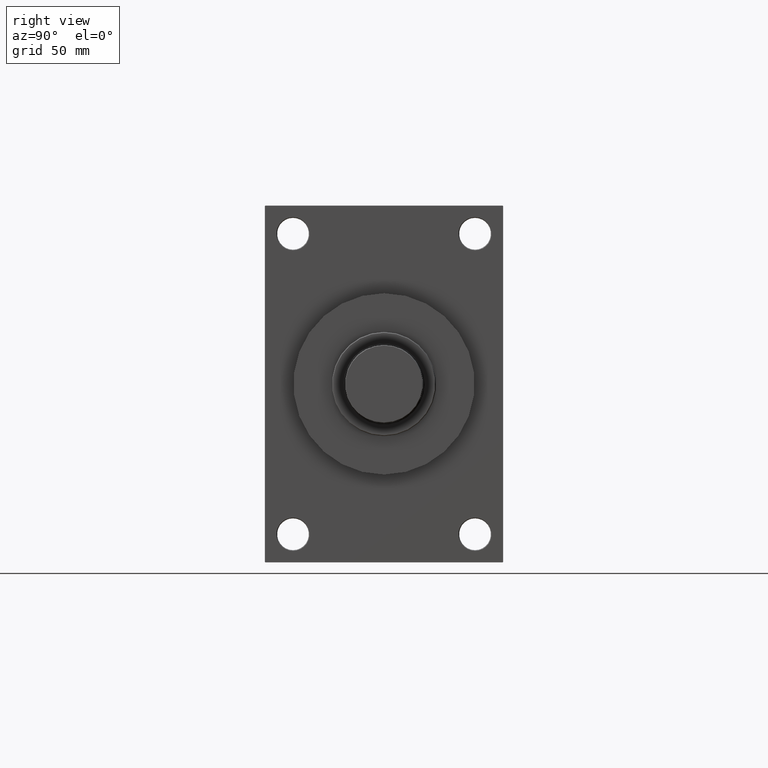
[diagram: clean part render]
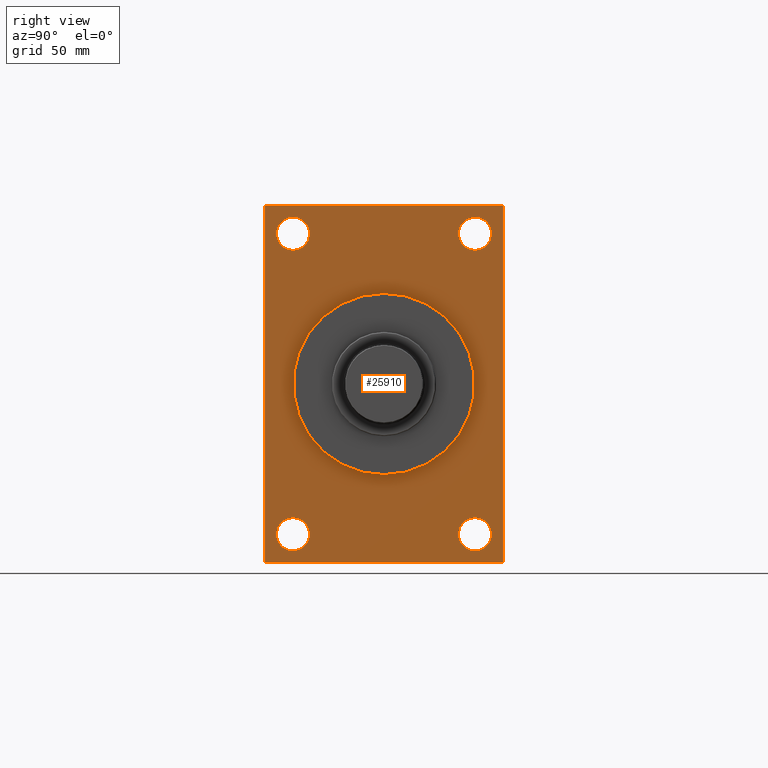
[diagram: same view with one face highlighted and labeled with its STEP entity id]
A machine part, right view. The second image highlights one B-rep face of the part: STEP entity #25910.
In plain terms, the highlighted planar face has unit normal (-1, 0, 0).
Its self-contained STEP definition (entity closure, byte-faithful):
#209 = DIRECTION ( 'NONE',  ( -0.000000000000000000, -0.7071067811865573427, -0.7071067811865376918 ) ) ;
#323 = DIRECTION ( 'NONE',  ( 0.000000000000000000, 0.000000000000000000, 1.000000000000000000 ) ) ;
#404 = VECTOR ( 'NONE', #11715, 1000.000000000000000 ) ;
#464 = EDGE_CURVE ( 'NONE', #43552, #38658, #44661, .T. ) ;
#576 = VECTOR ( 'NONE', #209, 1000.000000000000114 ) ;
#772 = ORIENTED_EDGE ( 'NONE', *, *, #3912, .T. ) ;
#929 = FACE_BOUND ( 'NONE', #966, .T. ) ;
#966 = EDGE_LOOP ( 'NONE', ( #46485, #7188 ) ) ;
#1524 = CARTESIAN_POINT ( 'NONE',  ( 275.0000000000000000, -82.50000000000002842, -123.0000000000000568 ) ) ;
#1715 = AXIS2_PLACEMENT_3D ( 'NONE', #29553, #19321, #44406 ) ;
#1774 = DIRECTION ( 'NONE',  ( -1.000000000000000000, 0.000000000000000000, -0.000000000000000000 ) ) ;
#3284 = CARTESIAN_POINT ( 'NONE',  ( 275.0000000000000000, -82.00000000000001421, -123.5000000000000426 ) ) ;
#3652 = VECTOR ( 'NONE', #21322, 1000.000000000000000 ) ;
#3912 = EDGE_CURVE ( 'NONE', #40980, #4206, #15127, .T. ) ;
#3925 = CARTESIAN_POINT ( 'NONE',  ( 275.0000000000000000, 82.49999999999995737, 123.4999999999999858 ) ) ;
#4027 = CARTESIAN_POINT ( 'NONE',  ( 275.0000000000000000, 62.99999999999998579, -92.49999999999977263 ) ) ;
#4206 = VERTEX_POINT ( 'NONE', #6950 ) ;
#4284 = VECTOR ( 'NONE', #17589, 1000.000000000000000 ) ;
#4435 = ORIENTED_EDGE ( 'NONE', *, *, #43594, .F. ) ;
#4537 = CARTESIAN_POINT ( 'NONE',  ( 275.0000000000000000, -63.00000000000001421, -104.0000000000000142 ) ) ;
#4680 = CARTESIAN_POINT ( 'NONE',  ( 275.0000000000000000, 62.99999999999998579, -115.5000000000002416 ) ) ;
#4758 = LINE ( 'NONE', #19630, #41792 ) ;
#5161 = VERTEX_POINT ( 'NONE', #41313 ) ;
#5736 = DIRECTION ( 'NONE',  ( -1.000000000000000000, 0.000000000000000000, -0.000000000000000000 ) ) ;
#5968 = LINE ( 'NONE', #3284, #3652 ) ;
#5993 = DIRECTION ( 'NONE',  ( -1.000000000000000000, 0.000000000000000000, -0.000000000000000000 ) ) ;
#6225 = CARTESIAN_POINT ( 'NONE',  ( 275.0000000000000000, 62.99999999999998579, -104.0000000000000142 ) ) ;
#6247 = CARTESIAN_POINT ( 'NONE',  ( 275.0000000000000000, 7.684658664649641591E-15, 62.75000000000000000 ) ) ;
#6401 = ORIENTED_EDGE ( 'NONE', *, *, #42753, .T. ) ;
#6799 = CARTESIAN_POINT ( 'NONE',  ( 275.0000000000000000, -63.00000000000001421, 104.0000000000000000 ) ) ;
#6950 = CARTESIAN_POINT ( 'NONE',  ( 275.0000000000000000, -82.00000000000007105, 123.4999999999999716 ) ) ;
#7188 = ORIENTED_EDGE ( 'NONE', *, *, #7346, .T. ) ;
#7225 = EDGE_CURVE ( 'NONE', #39948, #8862, #24528, .T. ) ;
#7252 = DIRECTION ( 'NONE',  ( 0.000000000000000000, 0.000000000000000000, 1.000000000000000000 ) ) ;
#7346 = EDGE_CURVE ( 'NONE', #34662, #25519, #27624, .T. ) ;
#7687 = EDGE_LOOP ( 'NONE', ( #25703, #20325 ) ) ;
#8252 = EDGE_LOOP ( 'NONE', ( #26353, #24570 ) ) ;
#8662 = DIRECTION ( 'NONE',  ( -1.000000000000000000, 0.000000000000000000, -0.000000000000000000 ) ) ;
#8862 = VERTEX_POINT ( 'NONE', #4680 ) ;
#9348 = ORIENTED_EDGE ( 'NONE', *, *, #37863, .T. ) ;
#10028 = CARTESIAN_POINT ( 'NONE',  ( 275.0000000000000000, -82.50000000000002842, 123.4999999999999716 ) ) ;
#10710 = LINE ( 'NONE', #14359, #576 ) ;
#10922 = CARTESIAN_POINT ( 'NONE',  ( 275.0000000000000000, -63.00000000000001421, -104.0000000000000142 ) ) ;
#11115 = CARTESIAN_POINT ( 'NONE',  ( 275.0000000000000000, -63.00000000000001421, -92.49999999999977263 ) ) ;
#11173 = CARTESIAN_POINT ( 'NONE',  ( 275.0000000000000000, 82.00000000000001421, 123.4999999999999858 ) ) ;
#11216 = DIRECTION ( 'NONE',  ( -1.000000000000000000, 0.000000000000000000, -0.000000000000000000 ) ) ;
#11420 = DIRECTION ( 'NONE',  ( -0.000000000000000000, 0.000000000000000000, 1.000000000000000000 ) ) ;
#11715 = DIRECTION ( 'NONE',  ( 0.000000000000000000, -1.000000000000000000, -8.410780489584520404E-17 ) ) ;
#11758 = EDGE_CURVE ( 'NONE', #4206, #36740, #10710, .T. ) ;
#11802 = CARTESIAN_POINT ( 'NONE',  ( 275.0000000000000000, 62.99999999999998579, 115.5000000000002132 ) ) ;
#12184 = VERTEX_POINT ( 'NONE', #12566 ) ;
#12399 = AXIS2_PLACEMENT_3D ( 'NONE', #4537, #8662, #19647 ) ;
#12492 = EDGE_CURVE ( 'NONE', #25519, #34662, #15350, .T. ) ;
#12566 = CARTESIAN_POINT ( 'NONE',  ( 275.0000000000000000, 82.49999999999995737, 123.0000000000000426 ) ) ;
#13293 = DIRECTION ( 'NONE',  ( 0.000000000000000000, 0.000000000000000000, 1.000000000000000000 ) ) ;
#14110 = CARTESIAN_POINT ( 'NONE',  ( 275.0000000000000000, -63.00000000000001421, -115.5000000000002416 ) ) ;
#14356 = CARTESIAN_POINT ( 'NONE',  ( 275.0000000000000000, 82.49999999999995737, -123.5000000000000284 ) ) ;
#14359 = CARTESIAN_POINT ( 'NONE',  ( 275.0000000000000000, -82.50000000000002842, 123.0000000000000284 ) ) ;
#14833 = FACE_OUTER_BOUND ( 'NONE', #15035, .T. ) ;
#15035 = EDGE_LOOP ( 'NONE', ( #43572, #45241, #4435, #36007, #36965, #6401, #772, #26658 ) ) ;
#15071 = FACE_BOUND ( 'NONE', #8252, .T. ) ;
#15127 = LINE ( 'NONE', #3925, #404 ) ;
#15350 = CIRCLE ( 'NONE', #48011, 11.50000000000023270 ) ;
#15842 = CARTESIAN_POINT ( 'NONE',  ( 275.0000000000000000, -63.00000000000001421, 115.5000000000002274 ) ) ;
#16495 = CARTESIAN_POINT ( 'NONE',  ( 275.0000000000000000, 62.99999999999998579, -104.0000000000000142 ) ) ;
#16725 = DIRECTION ( 'NONE',  ( -1.000000000000000000, 0.000000000000000000, -0.000000000000000000 ) ) ;
#16888 = CARTESIAN_POINT ( 'NONE',  ( 275.0000000000000000, 62.99999999999998579, 103.9999999999999858 ) ) ;
#17130 = CIRCLE ( 'NONE', #35791, 11.50000000000023270 ) ;
#17407 = AXIS2_PLACEMENT_3D ( 'NONE', #10922, #25532, #7252 ) ;
#17573 = VECTOR ( 'NONE', #22374, 1000.000000000000114 ) ;
#17589 = DIRECTION ( 'NONE',  ( 0.000000000000000000, 0.000000000000000000, -1.000000000000000000 ) ) ;
#17770 = DIRECTION ( 'NONE',  ( 0.000000000000000000, 0.000000000000000000, 1.000000000000000000 ) ) ;
#18011 = DIRECTION ( 'NONE',  ( 0.000000000000000000, -1.000000000000000000, -8.410780489584520404E-17 ) ) ;
#18428 = CARTESIAN_POINT ( 'NONE',  ( 275.0000000000000000, 82.49999999999995737, -123.0000000000000142 ) ) ;
#19095 = CARTESIAN_POINT ( 'NONE',  ( 275.0000000000000000, -82.00000000000001421, -123.5000000000000426 ) ) ;
#19176 = VECTOR ( 'NONE', #18011, 1000.000000000000000 ) ;
#19321 = DIRECTION ( 'NONE',  ( -1.000000000000000000, 0.000000000000000000, -0.000000000000000000 ) ) ;
#19382 = CARTESIAN_POINT ( 'NONE',  ( 275.0000000000000000, 82.00000000000001421, 123.4999999999999858 ) ) ;
#19485 = CARTESIAN_POINT ( 'NONE',  ( 275.0000000000000000, -63.00000000000001421, 104.0000000000000000 ) ) ;
#19630 = CARTESIAN_POINT ( 'NONE',  ( 275.0000000000000000, 82.49999999999995737, -123.0000000000000142 ) ) ;
#19647 = DIRECTION ( 'NONE',  ( 0.000000000000000000, 0.000000000000000000, 1.000000000000000000 ) ) ;
#20325 = ORIENTED_EDGE ( 'NONE', *, *, #27814, .T. ) ;
#20421 = EDGE_CURVE ( 'NONE', #38658, #43552, #33396, .T. ) ;
#21272 = EDGE_CURVE ( 'NONE', #5161, #30364, #48182, .T. ) ;
#21322 = DIRECTION ( 'NONE',  ( 0.000000000000000000, 0.7071067811865671127, -0.7071067811865279218 ) ) ;
#22265 = DIRECTION ( 'NONE',  ( -1.000000000000000000, 0.000000000000000000, -0.000000000000000000 ) ) ;
#22374 = DIRECTION ( 'NONE',  ( 0.000000000000000000, -0.7071067811865474617, 0.7071067811865474617 ) ) ;
#22439 = CARTESIAN_POINT ( 'NONE',  ( 275.0000000000000000, 81.99999999999995737, -123.5000000000000284 ) ) ;
#22632 = EDGE_CURVE ( 'NONE', #31538, #40607, #17130, .T. ) ;
#22863 = PLANE ( 'NONE',  #32702 ) ;
#24528 = CIRCLE ( 'NONE', #34649, 11.50000000000023270 ) ;
#24570 = ORIENTED_EDGE ( 'NONE', *, *, #20421, .T. ) ;
#24833 = LINE ( 'NONE', #14356, #19176 ) ;
#25519 = VERTEX_POINT ( 'NONE', #42968 ) ;
#25532 = DIRECTION ( 'NONE',  ( -1.000000000000000000, 0.000000000000000000, -0.000000000000000000 ) ) ;
#25676 = CARTESIAN_POINT ( 'NONE',  ( 275.0000000000000000, 0.000000000000000000, 0.000000000000000000 ) ) ;
#25703 = ORIENTED_EDGE ( 'NONE', *, *, #22632, .T. ) ;
#25910 = ADVANCED_FACE ( 'NONE', ( #48171, #15071, #30157, #929, #34052, #14833 ), #22863, .F. ) ;
#26353 = ORIENTED_EDGE ( 'NONE', *, *, #464, .T. ) ;
#26658 = ORIENTED_EDGE ( 'NONE', *, *, #11758, .T. ) ;
#26746 = CARTESIAN_POINT ( 'NONE',  ( 275.0000000000000000, 0.000000000000000000, 0.000000000000000000 ) ) ;
#27359 = DIRECTION ( 'NONE',  ( 0.000000000000000000, 0.000000000000000000, 1.000000000000000000 ) ) ;
#27624 = CIRCLE ( 'NONE', #35405, 11.50000000000023270 ) ;
#27629 = VERTEX_POINT ( 'NONE', #22439 ) ;
#27814 = EDGE_CURVE ( 'NONE', #40607, #31538, #43657, .T. ) ;
#28267 = CIRCLE ( 'NONE', #39175, 11.50000000000023270 ) ;
#28868 = AXIS2_PLACEMENT_3D ( 'NONE', #6799, #35784, #17770 ) ;
#29472 = EDGE_CURVE ( 'NONE', #30364, #5161, #41374, .T. ) ;
#29553 = CARTESIAN_POINT ( 'NONE',  ( 275.0000000000000000, 0.000000000000000000, 0.000000000000000000 ) ) ;
#30157 = FACE_BOUND ( 'NONE', #46946, .T. ) ;
#30364 = VERTEX_POINT ( 'NONE', #6247 ) ;
#31102 = DIRECTION ( 'NONE',  ( 0.000000000000000000, 0.000000000000000000, 1.000000000000000000 ) ) ;
#31538 = VERTEX_POINT ( 'NONE', #43952 ) ;
#32530 = ORIENTED_EDGE ( 'NONE', *, *, #21272, .T. ) ;
#32702 = AXIS2_PLACEMENT_3D ( 'NONE', #26746, #37709, #11420 ) ;
#33396 = CIRCLE ( 'NONE', #12399, 11.50000000000023270 ) ;
#34052 = FACE_BOUND ( 'NONE', #37974, .T. ) ;
#34221 = AXIS2_PLACEMENT_3D ( 'NONE', #25676, #22265, #323 ) ;
#34353 = EDGE_CURVE ( 'NONE', #12184, #39431, #36532, .T. ) ;
#34464 = DIRECTION ( 'NONE',  ( -0.000000000000000000, 0.7071067811865376918, 0.7071067811865574537 ) ) ;
#34649 = AXIS2_PLACEMENT_3D ( 'NONE', #6225, #16725, #38870 ) ;
#34662 = VERTEX_POINT ( 'NONE', #11802 ) ;
#35405 = AXIS2_PLACEMENT_3D ( 'NONE', #38629, #5736, #13293 ) ;
#35578 = CARTESIAN_POINT ( 'NONE',  ( 275.0000000000000000, -82.50000000000002842, 123.0000000000000284 ) ) ;
#35784 = DIRECTION ( 'NONE',  ( -1.000000000000000000, 0.000000000000000000, -0.000000000000000000 ) ) ;
#35791 = AXIS2_PLACEMENT_3D ( 'NONE', #19485, #11216, #45283 ) ;
#36007 = ORIENTED_EDGE ( 'NONE', *, *, #46091, .T. ) ;
#36122 = ORIENTED_EDGE ( 'NONE', *, *, #29472, .T. ) ;
#36532 = LINE ( 'NONE', #47475, #38383 ) ;
#36740 = VERTEX_POINT ( 'NONE', #35578 ) ;
#36965 = ORIENTED_EDGE ( 'NONE', *, *, #34353, .F. ) ;
#37709 = DIRECTION ( 'NONE',  ( -1.000000000000000000, 0.000000000000000000, -0.000000000000000000 ) ) ;
#37863 = EDGE_CURVE ( 'NONE', #8862, #39948, #28267, .T. ) ;
#37974 = EDGE_LOOP ( 'NONE', ( #32530, #36122 ) ) ;
#38383 = VECTOR ( 'NONE', #47238, 1000.000000000000000 ) ;
#38629 = CARTESIAN_POINT ( 'NONE',  ( 275.0000000000000000, 62.99999999999998579, 103.9999999999999858 ) ) ;
#38658 = VERTEX_POINT ( 'NONE', #11115 ) ;
#38870 = DIRECTION ( 'NONE',  ( 0.000000000000000000, 0.000000000000000000, 1.000000000000000000 ) ) ;
#39175 = AXIS2_PLACEMENT_3D ( 'NONE', #16495, #5993, #31102 ) ;
#39256 = LINE ( 'NONE', #10028, #4284 ) ;
#39431 = VERTEX_POINT ( 'NONE', #18428 ) ;
#39948 = VERTEX_POINT ( 'NONE', #4027 ) ;
#40607 = VERTEX_POINT ( 'NONE', #15842 ) ;
#40631 = LINE ( 'NONE', #11173, #17573 ) ;
#40980 = VERTEX_POINT ( 'NONE', #19382 ) ;
#41313 = CARTESIAN_POINT ( 'NONE',  ( 275.0000000000000000, 0.000000000000000000, -62.75000000000000000 ) ) ;
#41358 = EDGE_CURVE ( 'NONE', #36740, #43208, #39256, .T. ) ;
#41374 = CIRCLE ( 'NONE', #1715, 62.75000000000000000 ) ;
#41792 = VECTOR ( 'NONE', #34464, 999.9999999999998863 ) ;
#42753 = EDGE_CURVE ( 'NONE', #12184, #40980, #40631, .T. ) ;
#42968 = CARTESIAN_POINT ( 'NONE',  ( 275.0000000000000000, 62.99999999999998579, 92.49999999999974420 ) ) ;
#43111 = VERTEX_POINT ( 'NONE', #19095 ) ;
#43208 = VERTEX_POINT ( 'NONE', #1524 ) ;
#43552 = VERTEX_POINT ( 'NONE', #14110 ) ;
#43572 = ORIENTED_EDGE ( 'NONE', *, *, #41358, .T. ) ;
#43594 = EDGE_CURVE ( 'NONE', #27629, #43111, #24833, .T. ) ;
#43657 = CIRCLE ( 'NONE', #28868, 11.50000000000023270 ) ;
#43952 = CARTESIAN_POINT ( 'NONE',  ( 275.0000000000000000, -63.00000000000001421, 92.49999999999975842 ) ) ;
#44406 = DIRECTION ( 'NONE',  ( 0.000000000000000000, 0.000000000000000000, 1.000000000000000000 ) ) ;
#44661 = CIRCLE ( 'NONE', #17407, 11.50000000000023270 ) ;
#45112 = EDGE_CURVE ( 'NONE', #43208, #43111, #5968, .T. ) ;
#45241 = ORIENTED_EDGE ( 'NONE', *, *, #45112, .T. ) ;
#45283 = DIRECTION ( 'NONE',  ( 0.000000000000000000, 0.000000000000000000, 1.000000000000000000 ) ) ;
#46091 = EDGE_CURVE ( 'NONE', #27629, #39431, #4758, .T. ) ;
#46485 = ORIENTED_EDGE ( 'NONE', *, *, #12492, .T. ) ;
#46946 = EDGE_LOOP ( 'NONE', ( #9348, #47671 ) ) ;
#47238 = DIRECTION ( 'NONE',  ( 0.000000000000000000, 0.000000000000000000, -1.000000000000000000 ) ) ;
#47475 = CARTESIAN_POINT ( 'NONE',  ( 275.0000000000000000, 82.49999999999995737, 123.4999999999999858 ) ) ;
#47671 = ORIENTED_EDGE ( 'NONE', *, *, #7225, .T. ) ;
#48011 = AXIS2_PLACEMENT_3D ( 'NONE', #16888, #1774, #27359 ) ;
#48171 = FACE_BOUND ( 'NONE', #7687, .T. ) ;
#48182 = CIRCLE ( 'NONE', #34221, 62.75000000000000000 ) ;